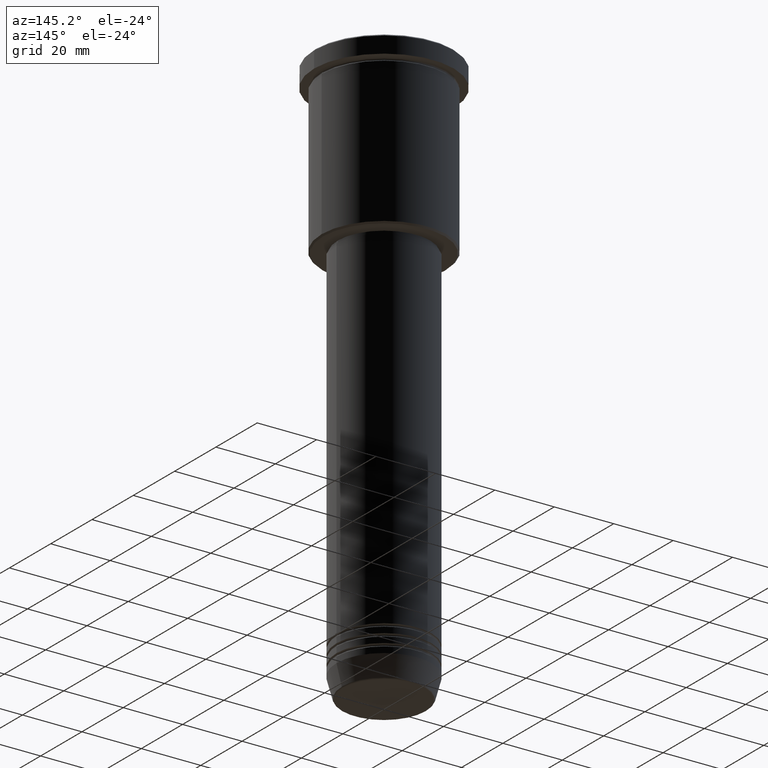
[diagram: clean part render]
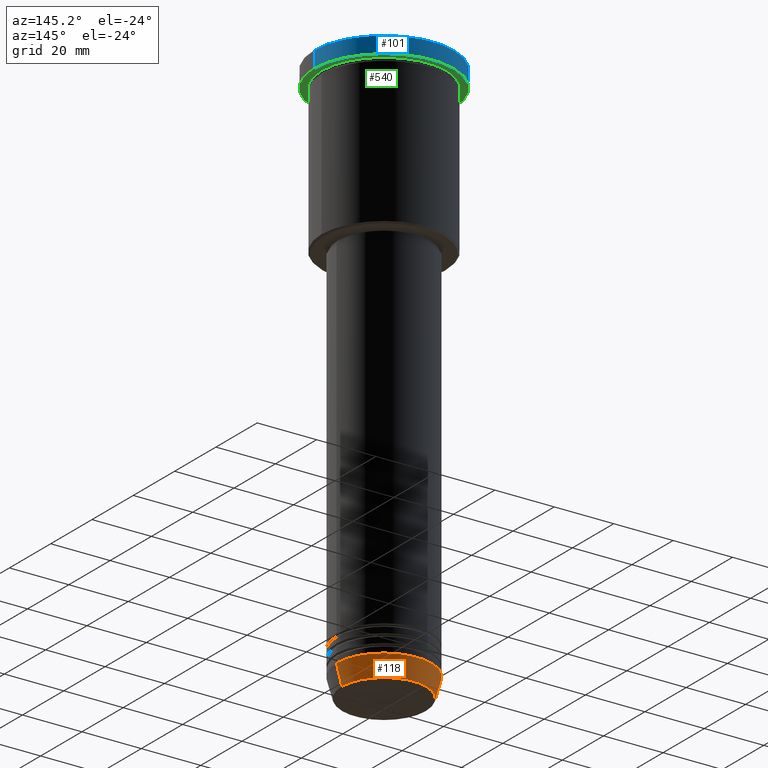
[diagram: same view with three faces highlighted in distinct colors, each labeled with its STEP entity id]
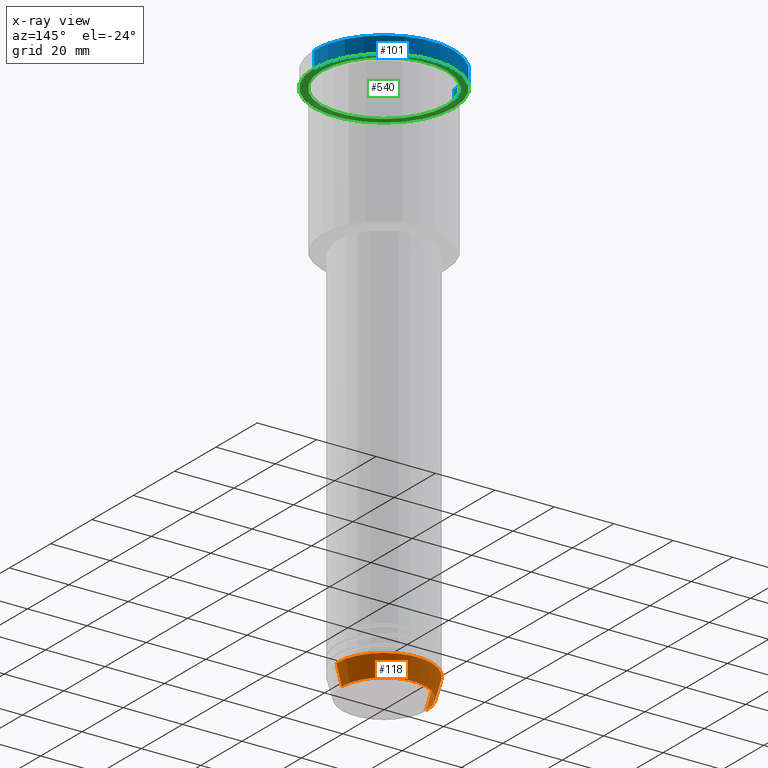
[diagram: x-ray of the same camera — body ghosted, the three highlighted faces saturated]
A machine part, auxiliary view with three faces highlighted in distinct colors.
The next image is the same camera in x-ray (body ghosted, the three faces saturated) — at least one of them is partly hidden behind the body in this view.
Their STEP definitions:

[orange] entity #118 — the highlighted conical surface has half-angle 15 deg.
#97 = ORIENTED_EDGE ( 'NONE', *, *, #951, .F. ) ;
#118 = ADVANCED_FACE ( 'NONE', ( #222 ), #526, .T. ) ;
#198 = AXIS2_PLACEMENT_3D ( 'NONE', #214, #912, #1113 ) ;
#203 = CARTESIAN_POINT ( 'NONE',  ( 0.000000000000000000, 0.000000000000000000, -190.6294095225512706 ) ) ;
#214 = CARTESIAN_POINT ( 'NONE',  ( 0.000000000000000000, 0.000000000000000000, -184.0000000000000284 ) ) ;
#222 = FACE_OUTER_BOUND ( 'NONE', #398, .T. ) ;
#259 = ORIENTED_EDGE ( 'NONE', *, *, #648, .F. ) ;
#353 = VECTOR ( 'NONE', #367, 1000.000000000000000 ) ;
#367 = DIRECTION ( 'NONE',  ( 0.2588190451025213501, 0.000000000000000000, 0.9659258262890680902 ) ) ;
#388 = AXIS2_PLACEMENT_3D ( 'NONE', #801, #407, #873 ) ;
#398 = EDGE_LOOP ( 'NONE', ( #976, #1073, #259, #97 ) ) ;
#407 = DIRECTION ( 'NONE',  ( -0.000000000000000000, -0.000000000000000000, 1.000000000000000000 ) ) ;
#426 = LINE ( 'NONE', #543, #706 ) ;
#481 = DIRECTION ( 'NONE',  ( -0.000000000000000000, -0.000000000000000000, 1.000000000000000000 ) ) ;
#526 = CONICAL_SURFACE ( 'NONE', #198, 16.00000000000000000, 0.2617993877991500740 ) ;
#543 = CARTESIAN_POINT ( 'NONE',  ( -16.00000000000000000, 1.959434878635765131E-15, -184.0000000000000284 ) ) ;
#565 = CARTESIAN_POINT ( 'NONE',  ( -16.00000000000000000, 1.959434878635765131E-15, -184.0000000000000284 ) ) ;
#574 = LINE ( 'NONE', #938, #353 ) ;
#576 = DIRECTION ( 'NONE',  ( 1.000000000000000000, 0.000000000000000000, 0.000000000000000000 ) ) ;
#605 = EDGE_CURVE ( 'NONE', #821, #739, #1108, .T. ) ;
#648 = EDGE_CURVE ( 'NONE', #1015, #994, #918, .T. ) ;
#686 = AXIS2_PLACEMENT_3D ( 'NONE', #203, #481, #576 ) ;
#706 = VECTOR ( 'NONE', #899, 1000.000000000000000 ) ;
#732 = CARTESIAN_POINT ( 'NONE',  ( 14.22365507213719660, 0.000000000000000000, -190.6294095225512706 ) ) ;
#739 = VERTEX_POINT ( 'NONE', #923 ) ;
#760 = EDGE_CURVE ( 'NONE', #739, #994, #426, .T. ) ;
#801 = CARTESIAN_POINT ( 'NONE',  ( 0.000000000000000000, 0.000000000000000000, -184.0000000000000284 ) ) ;
#821 = VERTEX_POINT ( 'NONE', #732 ) ;
#873 = DIRECTION ( 'NONE',  ( 1.000000000000000000, 0.000000000000000000, 0.000000000000000000 ) ) ;
#899 = DIRECTION ( 'NONE',  ( -0.2588190451025213501, 3.169619151431772337E-17, 0.9659258262890680902 ) ) ;
#912 = DIRECTION ( 'NONE',  ( -0.000000000000000000, -0.000000000000000000, 1.000000000000000000 ) ) ;
#918 = CIRCLE ( 'NONE', #388, 16.00000000000000000 ) ;
#923 = CARTESIAN_POINT ( 'NONE',  ( -14.22365507213719660, 1.850665122131324126E-15, -190.6294095225512706 ) ) ;
#938 = CARTESIAN_POINT ( 'NONE',  ( 16.00000000000000000, 0.000000000000000000, -184.0000000000000284 ) ) ;
#951 = EDGE_CURVE ( 'NONE', #821, #1015, #574, .T. ) ;
#976 = ORIENTED_EDGE ( 'NONE', *, *, #605, .T. ) ;
#994 = VERTEX_POINT ( 'NONE', #565 ) ;
#1015 = VERTEX_POINT ( 'NONE', #1033 ) ;
#1033 = CARTESIAN_POINT ( 'NONE',  ( 16.00000000000000000, 0.000000000000000000, -184.0000000000000284 ) ) ;
#1073 = ORIENTED_EDGE ( 'NONE', *, *, #760, .T. ) ;
#1108 = CIRCLE ( 'NONE', #686, 14.22365507213719660 ) ;
#1113 = DIRECTION ( 'NONE',  ( 1.000000000000000000, 0.000000000000000000, 0.000000000000000000 ) ) ;

[blue] entity #101 — the highlighted cylindrical surface (partial cylindrical patch) has radius 23.5 mm, axis along (-0, -0, 1).
#61 = EDGE_CURVE ( 'NONE', #924, #856, #218, .T. ) ;
#101 = ADVANCED_FACE ( 'NONE', ( #187 ), #558, .T. ) ;
#109 = AXIS2_PLACEMENT_3D ( 'NONE', #734, #1101, #549 ) ;
#110 = CARTESIAN_POINT ( 'NONE',  ( -23.50000000000000000, 2.877919977996280320E-15, -0.5000000000000281997 ) ) ;
#171 = CARTESIAN_POINT ( 'NONE',  ( 23.50000000000000000, 0.000000000000000000, -0.5000000000000281997 ) ) ;
#187 = FACE_OUTER_BOUND ( 'NONE', #581, .T. ) ;
#197 = DIRECTION ( 'NONE',  ( -0.000000000000000000, -0.000000000000000000, 1.000000000000000000 ) ) ;
#218 = CIRCLE ( 'NONE', #109, 23.50000000000000000 ) ;
#229 = LINE ( 'NONE', #890, #989 ) ;
#253 = ORIENTED_EDGE ( 'NONE', *, *, #400, .T. ) ;
#298 = EDGE_CURVE ( 'NONE', #522, #924, #229, .T. ) ;
#311 = AXIS2_PLACEMENT_3D ( 'NONE', #544, #986, #348 ) ;
#348 = DIRECTION ( 'NONE',  ( 1.000000000000000000, 0.000000000000000000, 0.000000000000000000 ) ) ;
#386 = ORIENTED_EDGE ( 'NONE', *, *, #596, .F. ) ;
#400 = EDGE_CURVE ( 'NONE', #413, #522, #408, .T. ) ;
#404 = ORIENTED_EDGE ( 'NONE', *, *, #61, .T. ) ;
#408 = CIRCLE ( 'NONE', #311, 23.50000000000000000 ) ;
#413 = VERTEX_POINT ( 'NONE', #726 ) ;
#522 = VERTEX_POINT ( 'NONE', #842 ) ;
#544 = CARTESIAN_POINT ( 'NONE',  ( 0.000000000000000000, 0.000000000000000000, -5.999999999999994671 ) ) ;
#546 = AXIS2_PLACEMENT_3D ( 'NONE', #1047, #741, #947 ) ;
#548 = VECTOR ( 'NONE', #197, 1000.000000000000000 ) ;
#549 = DIRECTION ( 'NONE',  ( 1.000000000000000000, 0.000000000000000000, 0.000000000000000000 ) ) ;
#558 = CYLINDRICAL_SURFACE ( 'NONE', #546, 23.50000000000000000 ) ;
#581 = EDGE_LOOP ( 'NONE', ( #253, #907, #404, #386 ) ) ;
#596 = EDGE_CURVE ( 'NONE', #413, #856, #1024, .T. ) ;
#598 = DIRECTION ( 'NONE',  ( -0.000000000000000000, -0.000000000000000000, 1.000000000000000000 ) ) ;
#726 = CARTESIAN_POINT ( 'NONE',  ( 23.50000000000000000, 0.000000000000000000, -5.999999999999994671 ) ) ;
#734 = CARTESIAN_POINT ( 'NONE',  ( 0.000000000000000000, 0.000000000000000000, -0.5000000000000281997 ) ) ;
#741 = DIRECTION ( 'NONE',  ( -0.000000000000000000, -0.000000000000000000, 1.000000000000000000 ) ) ;
#842 = CARTESIAN_POINT ( 'NONE',  ( -23.50000000000000000, 2.877919977996280320E-15, -5.999999999999994671 ) ) ;
#856 = VERTEX_POINT ( 'NONE', #171 ) ;
#890 = CARTESIAN_POINT ( 'NONE',  ( -23.50000000000000000, 2.877919977996280320E-15, 0.000000000000000000 ) ) ;
#907 = ORIENTED_EDGE ( 'NONE', *, *, #298, .T. ) ;
#924 = VERTEX_POINT ( 'NONE', #110 ) ;
#947 = DIRECTION ( 'NONE',  ( 1.000000000000000000, 0.000000000000000000, 0.000000000000000000 ) ) ;
#986 = DIRECTION ( 'NONE',  ( -0.000000000000000000, -0.000000000000000000, 1.000000000000000000 ) ) ;
#989 = VECTOR ( 'NONE', #598, 1000.000000000000000 ) ;
#1024 = LINE ( 'NONE', #1118, #548 ) ;
#1047 = CARTESIAN_POINT ( 'NONE',  ( 0.000000000000000000, 0.000000000000000000, 0.000000000000000000 ) ) ;
#1101 = DIRECTION ( 'NONE',  ( 0.000000000000000000, 0.000000000000000000, -1.000000000000000000 ) ) ;
#1118 = CARTESIAN_POINT ( 'NONE',  ( 23.50000000000000000, 0.000000000000000000, 0.000000000000000000 ) ) ;

[green] entity #540 — the highlighted planar face has unit normal (0, 0, -1).
#26 = FACE_BOUND ( 'NONE', #98, .T. ) ;
#79 = ORIENTED_EDGE ( 'NONE', *, *, #933, .T. ) ;
#98 = EDGE_LOOP ( 'NONE', ( #930, #79 ) ) ;
#246 = CARTESIAN_POINT ( 'NONE',  ( 21.00000000000000000, 2.571758278209441661E-15, -5.999999999999994671 ) ) ;
#270 = DIRECTION ( 'NONE',  ( -0.000000000000000000, -0.000000000000000000, 1.000000000000000000 ) ) ;
#281 = AXIS2_PLACEMENT_3D ( 'NONE', #341, #1168, #829 ) ;
#285 = DIRECTION ( 'NONE',  ( -1.000000000000000000, 0.000000000000000000, 0.000000000000000000 ) ) ;
#301 = CARTESIAN_POINT ( 'NONE',  ( 0.000000000000000000, 23.50000000000000000, -5.999999999999994671 ) ) ;
#311 = AXIS2_PLACEMENT_3D ( 'NONE', #544, #986, #348 ) ;
#341 = CARTESIAN_POINT ( 'NONE',  ( 0.000000000000000000, 0.000000000000000000, -5.999999999999994671 ) ) ;
#348 = DIRECTION ( 'NONE',  ( 1.000000000000000000, 0.000000000000000000, 0.000000000000000000 ) ) ;
#351 = AXIS2_PLACEMENT_3D ( 'NONE', #301, #678, #491 ) ;
#368 = EDGE_CURVE ( 'NONE', #522, #413, #1145, .T. ) ;
#374 = CIRCLE ( 'NONE', #1012, 21.00000000000000000 ) ;
#379 = CARTESIAN_POINT ( 'NONE',  ( 0.000000000000000000, 0.000000000000000000, -5.999999999999994671 ) ) ;
#381 = EDGE_LOOP ( 'NONE', ( #603, #1137 ) ) ;
#389 = PLANE ( 'NONE',  #351 ) ;
#400 = EDGE_CURVE ( 'NONE', #413, #522, #408, .T. ) ;
#408 = CIRCLE ( 'NONE', #311, 23.50000000000000000 ) ;
#409 = CIRCLE ( 'NONE', #281, 21.00000000000000000 ) ;
#413 = VERTEX_POINT ( 'NONE', #726 ) ;
#479 = CARTESIAN_POINT ( 'NONE',  ( -21.00000000000000000, 0.000000000000000000, -5.999999999999994671 ) ) ;
#491 = DIRECTION ( 'NONE',  ( -1.000000000000000000, 0.000000000000000000, -0.000000000000000000 ) ) ;
#507 = VERTEX_POINT ( 'NONE', #479 ) ;
#522 = VERTEX_POINT ( 'NONE', #842 ) ;
#540 = ADVANCED_FACE ( 'NONE', ( #26, #667 ), #389, .T. ) ;
#544 = CARTESIAN_POINT ( 'NONE',  ( 0.000000000000000000, 0.000000000000000000, -5.999999999999994671 ) ) ;
#603 = ORIENTED_EDGE ( 'NONE', *, *, #400, .F. ) ;
#653 = AXIS2_PLACEMENT_3D ( 'NONE', #1094, #270, #1104 ) ;
#667 = FACE_OUTER_BOUND ( 'NONE', #381, .T. ) ;
#678 = DIRECTION ( 'NONE',  ( 0.000000000000000000, 0.000000000000000000, -1.000000000000000000 ) ) ;
#702 = VERTEX_POINT ( 'NONE', #246 ) ;
#726 = CARTESIAN_POINT ( 'NONE',  ( 23.50000000000000000, 0.000000000000000000, -5.999999999999994671 ) ) ;
#829 = DIRECTION ( 'NONE',  ( -1.000000000000000000, 0.000000000000000000, 0.000000000000000000 ) ) ;
#839 = EDGE_CURVE ( 'NONE', #507, #702, #409, .T. ) ;
#842 = CARTESIAN_POINT ( 'NONE',  ( -23.50000000000000000, 2.877919977996280320E-15, -5.999999999999994671 ) ) ;
#850 = DIRECTION ( 'NONE',  ( -0.000000000000000000, -0.000000000000000000, 1.000000000000000000 ) ) ;
#930 = ORIENTED_EDGE ( 'NONE', *, *, #839, .T. ) ;
#933 = EDGE_CURVE ( 'NONE', #702, #507, #374, .T. ) ;
#986 = DIRECTION ( 'NONE',  ( -0.000000000000000000, -0.000000000000000000, 1.000000000000000000 ) ) ;
#1012 = AXIS2_PLACEMENT_3D ( 'NONE', #379, #850, #285 ) ;
#1094 = CARTESIAN_POINT ( 'NONE',  ( 0.000000000000000000, 0.000000000000000000, -5.999999999999994671 ) ) ;
#1104 = DIRECTION ( 'NONE',  ( 1.000000000000000000, 0.000000000000000000, 0.000000000000000000 ) ) ;
#1137 = ORIENTED_EDGE ( 'NONE', *, *, #368, .F. ) ;
#1145 = CIRCLE ( 'NONE', #653, 23.50000000000000000 ) ;
#1168 = DIRECTION ( 'NONE',  ( -0.000000000000000000, -0.000000000000000000, 1.000000000000000000 ) ) ;